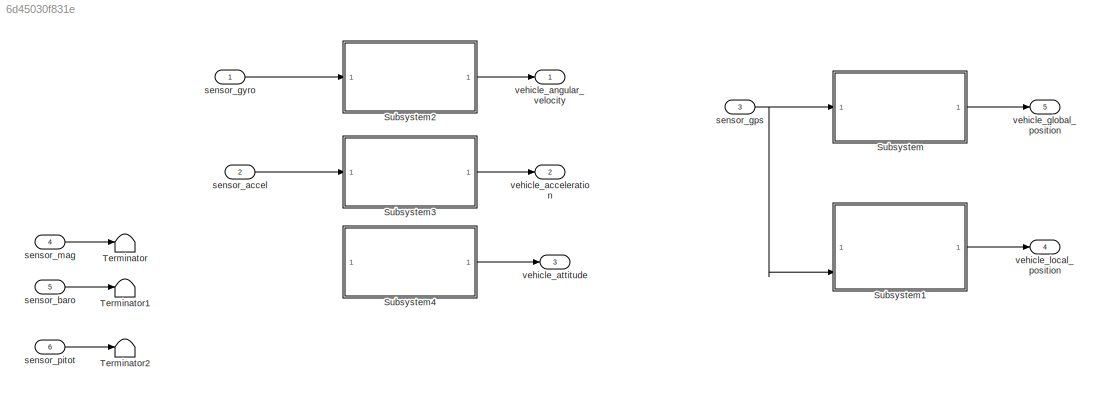
MODEL slx_6d45030f831e
KIND model
CONFIG AbsTol = auto
CONFIG EnableMultiTasking = off
CONFIG FixedStep = 0.005
CONFIG MaxStep = auto
CONFIG MinStep = auto
CONFIG RelTol = 1e-3
CONFIG SampleTimeConstraint = Unconstrained
CONFIG SolverName = FixedStepAuto
CONFIG StartTime = 0.0
CONFIG StopTime = 10.0
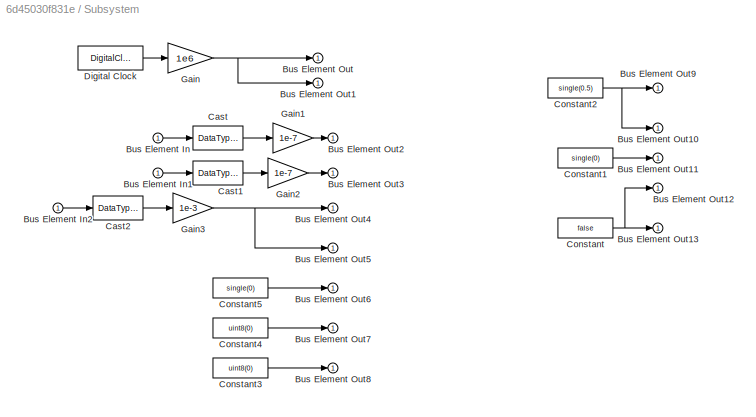
BLOCK [SubSystem] Subsystem
BLOCK [Inport] Subsystem/Bus Element In
BLOCK [Inport] Subsystem/Bus Element In1
BLOCK [Inport] Subsystem/Bus Element In2
BLOCK [Outport] Subsystem/Bus Element Out
BLOCK [Outport] Subsystem/Bus Element Out1
BLOCK [Outport] Subsystem/Bus Element Out10
BLOCK [Outport] Subsystem/Bus Element Out11
BLOCK [Outport] Subsystem/Bus Element Out12
BLOCK [Outport] Subsystem/Bus Element Out13
BLOCK [Outport] Subsystem/Bus Element Out2
BLOCK [Outport] Subsystem/Bus Element Out3
BLOCK [Outport] Subsystem/Bus Element Out4
BLOCK [Outport] Subsystem/Bus Element Out5
BLOCK [Outport] Subsystem/Bus Element Out6
BLOCK [Outport] Subsystem/Bus Element Out7
BLOCK [Outport] Subsystem/Bus Element Out8
BLOCK [Outport] Subsystem/Bus Element Out9
BLOCK [DataTypeConversion] Subsystem/Cast
  OutDataTypeStr = double
  RndMeth = Floor
  SaturateOnIntegerOverflow = off
BLOCK [DataTypeConversion] Subsystem/Cast1
  OutDataTypeStr = double
  RndMeth = Floor
  SaturateOnIntegerOverflow = off
BLOCK [DataTypeConversion] Subsystem/Cast2
  OutDataTypeStr = double
  RndMeth = Floor
  SaturateOnIntegerOverflow = off
BLOCK [Constant] Subsystem/Constant
  Value = false
BLOCK [Constant] Subsystem/Constant1
  Value = single(0)
BLOCK [Constant] Subsystem/Constant2
  Value = single(0.5)
BLOCK [Constant] Subsystem/Constant3
  Value = uint8(0)
BLOCK [Constant] Subsystem/Constant4
  Value = uint8(0)
BLOCK [Constant] Subsystem/Constant5
  Value = single(0)
BLOCK [DigitalClock] Subsystem/Digital Clock
BLOCK [Gain] Subsystem/Gain
  Gain = 1e6
  OutDataTypeStr = uint64
BLOCK [Gain] Subsystem/Gain1
  Gain = 1e-7
  OutDataTypeStr = double
BLOCK [Gain] Subsystem/Gain2
  Gain = 1e-7
  OutDataTypeStr = double
BLOCK [Gain] Subsystem/Gain3
  Gain = 1e-3
  OutDataTypeStr = single
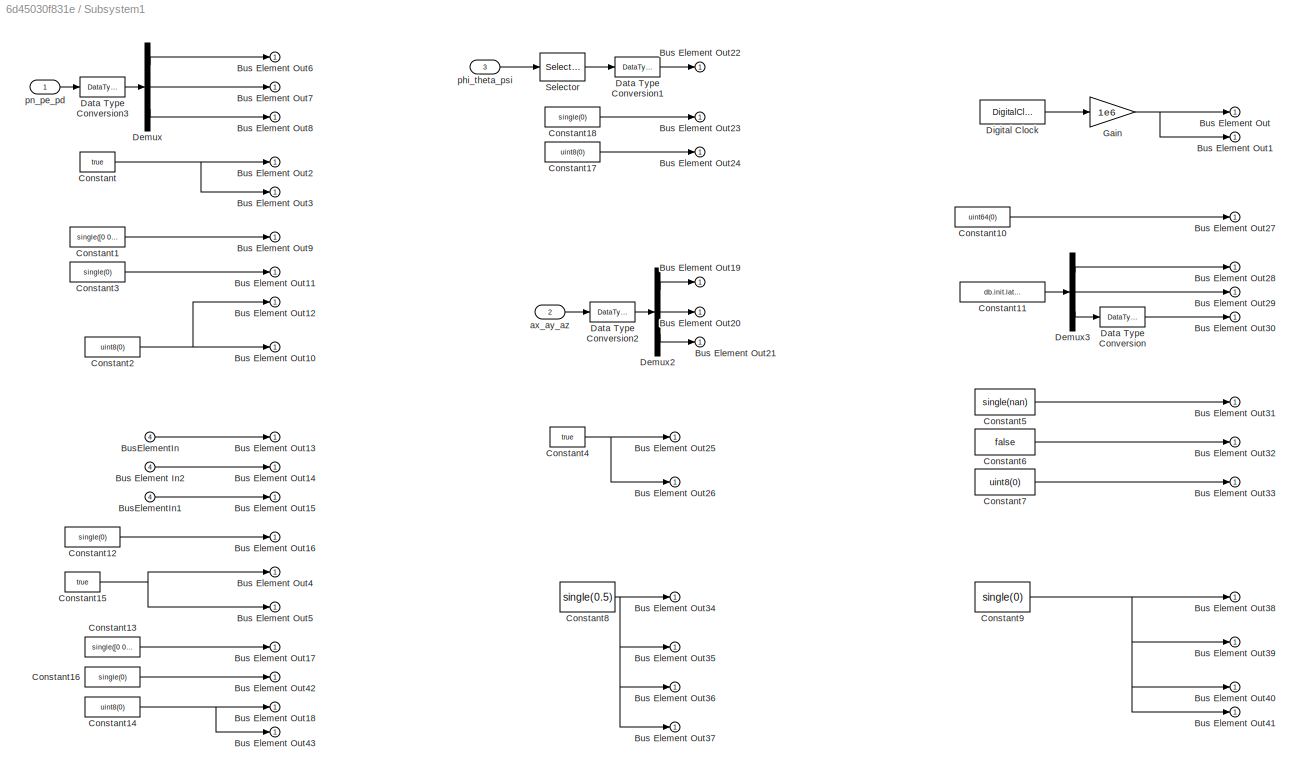
BLOCK [SubSystem] Subsystem1
  Commented = on
BLOCK [Inport] Subsystem1/Bus Element In2
  Port = 4
BLOCK [Outport] Subsystem1/Bus Element Out
BLOCK [Outport] Subsystem1/Bus Element Out1
BLOCK [Outport] Subsystem1/Bus Element Out10
BLOCK [Outport] Subsystem1/Bus Element Out11
BLOCK [Outport] Subsystem1/Bus Element Out12
BLOCK [Outport] Subsystem1/Bus Element Out13
BLOCK [Outport] Subsystem1/Bus Element Out14
BLOCK [Outport] Subsystem1/Bus Element Out15
BLOCK [Outport] Subsystem1/Bus Element Out16
BLOCK [Outport] Subsystem1/Bus Element Out17
BLOCK [Outport] Subsystem1/Bus Element Out18
BLOCK [Outport] Subsystem1/Bus Element Out19
BLOCK [Outport] Subsystem1/Bus Element Out2
BLOCK [Outport] Subsystem1/Bus Element Out20
BLOCK [Outport] Subsystem1/Bus Element Out21
BLOCK [Outport] Subsystem1/Bus Element Out22
BLOCK [Outport] Subsystem1/Bus Element Out23
BLOCK [Outport] Subsystem1/Bus Element Out24
BLOCK [Outport] Subsystem1/Bus Element Out25
BLOCK [Outport] Subsystem1/Bus Element Out26
BLOCK [Outport] Subsystem1/Bus Element Out27
BLOCK [Outport] Subsystem1/Bus Element Out28
BLOCK [Outport] Subsystem1/Bus Element Out29
BLOCK [Outport] Subsystem1/Bus Element Out3
BLOCK [Outport] Subsystem1/Bus Element Out30
BLOCK [Outport] Subsystem1/Bus Element Out31
BLOCK [Outport] Subsystem1/Bus Element Out32
BLOCK [Outport] Subsystem1/Bus Element Out33
BLOCK [Outport] Subsystem1/Bus Element Out34
BLOCK [Outport] Subsystem1/Bus Element Out35
BLOCK [Outport] Subsystem1/Bus Element Out36
BLOCK [Outport] Subsystem1/Bus Element Out37
BLOCK [Outport] Subsystem1/Bus Element Out38
BLOCK [Outport] Subsystem1/Bus Element Out39
BLOCK [Outport] Subsystem1/Bus Element Out4
BLOCK [Outport] Subsystem1/Bus Element Out40
BLOCK [Outport] Subsystem1/Bus Element Out41
BLOCK [Outport] Subsystem1/Bus Element Out42
BLOCK [Outport] Subsystem1/Bus Element Out43
BLOCK [Outport] Subsystem1/Bus Element Out5
BLOCK [Outport] Subsystem1/Bus Element Out6
BLOCK [Outport] Subsystem1/Bus Element Out7
BLOCK [Outport] Subsystem1/Bus Element Out8
BLOCK [Outport] Subsystem1/Bus Element Out9
BLOCK [Inport] Subsystem1/BusElementIn
  Port = 4
BLOCK [Inport] Subsystem1/BusElementIn1
  Port = 4
BLOCK [Constant] Subsystem1/Constant
  Value = true
BLOCK [Constant] Subsystem1/Constant1
  Value = single([0 0])
BLOCK [Constant] Subsystem1/Constant10
  Value = uint64(0)
BLOCK [Constant] Subsystem1/Constant11
  Value = db.init.lat_lon_alt
BLOCK [Constant] Subsystem1/Constant12
  Value = single(0)
BLOCK [Constant] Subsystem1/Constant13
  Value = single([0 0])
BLOCK [Constant] Subsystem1/Constant14
  Value = uint8(0)
BLOCK [Constant] Subsystem1/Constant15
  Value = true
BLOCK [Constant] Subsystem1/Constant16
  Value = single(0)
BLOCK [Constant] Subsystem1/Constant17
  Value = uint8(0)
BLOCK [Constant] Subsystem1/Constant18
  Value = single(0)
BLOCK [Constant] Subsystem1/Constant2
  Value = uint8(0)
BLOCK [Constant] Subsystem1/Constant3
  Value = single(0)
BLOCK [Constant] Subsystem1/Constant4
  Value = true
BLOCK [Constant] Subsystem1/Constant5
  Value = single(nan)
BLOCK [Constant] Subsystem1/Constant6
  Value = false
BLOCK [Constant] Subsystem1/Constant7
  Value = uint8(0)
BLOCK [Constant] Subsystem1/Constant8
  Value = single(0.5)
BLOCK [Constant] Subsystem1/Constant9
  Value = single(0)
BLOCK [DataTypeConversion] Subsystem1/Data Type Conversion
  OutDataTypeStr = single
  RndMeth = Floor
  SaturateOnIntegerOverflow = off
BLOCK [DataTypeConversion] Subsystem1/Data Type Conversion1
  OutDataTypeStr = single
  RndMeth = Floor
  SaturateOnIntegerOverflow = off
BLOCK [DataTypeConversion] Subsystem1/Data Type Conversion2
  OutDataTypeStr = single
  RndMeth = Floor
  SaturateOnIntegerOverflow = off
BLOCK [DataTypeConversion] Subsystem1/Data Type Conversion3
  OutDataTypeStr = single
  RndMeth = Floor
  SaturateOnIntegerOverflow = off
BLOCK [Demux] Subsystem1/Demux
  Outputs = 3
BLOCK [Demux] Subsystem1/Demux2
  Outputs = 3
BLOCK [Demux] Subsystem1/Demux3
  Outputs = 3
BLOCK [DigitalClock] Subsystem1/Digital Clock
BLOCK [Gain] Subsystem1/Gain
  Gain = 1e6
  OutDataTypeStr = uint64
BLOCK [Selector] Subsystem1/Selector
  IndexOptions = Index vector (dialog)
  Indices = 3
  InputPortWidth = 3
  OutputSizes = 1
BLOCK [Inport] Subsystem1/ax_ay_az
  Port = 2
BLOCK [Inport] Subsystem1/phi_theta_psi
  Port = 3
BLOCK [Inport] Subsystem1/pn_pe_pd
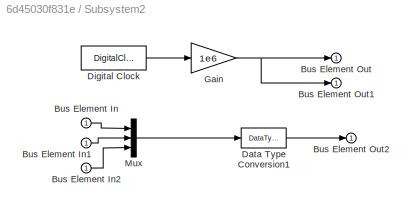
BLOCK [SubSystem] Subsystem2
BLOCK [Inport] Subsystem2/Bus Element In
BLOCK [Inport] Subsystem2/Bus Element In1
BLOCK [Inport] Subsystem2/Bus Element In2
BLOCK [Outport] Subsystem2/Bus Element Out
BLOCK [Outport] Subsystem2/Bus Element Out1
BLOCK [Outport] Subsystem2/Bus Element Out2
BLOCK [DataTypeConversion] Subsystem2/Data Type Conversion1
  OutDataTypeStr = single
  RndMeth = Floor
  SaturateOnIntegerOverflow = off
BLOCK [DigitalClock] Subsystem2/Digital Clock
BLOCK [Gain] Subsystem2/Gain
  Gain = 1e6
  OutDataTypeStr = uint64
BLOCK [Mux] Subsystem2/Mux
  DisplayOption = bar
  Inputs = 3
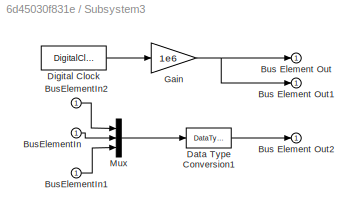
BLOCK [SubSystem] Subsystem3
BLOCK [Outport] Subsystem3/Bus Element Out
BLOCK [Outport] Subsystem3/Bus Element Out1
BLOCK [Outport] Subsystem3/Bus Element Out2
BLOCK [Inport] Subsystem3/BusElementIn
BLOCK [Inport] Subsystem3/BusElementIn1
BLOCK [Inport] Subsystem3/BusElementIn2
BLOCK [DataTypeConversion] Subsystem3/Data Type Conversion1
  OutDataTypeStr = single
  RndMeth = Floor
  SaturateOnIntegerOverflow = off
BLOCK [DigitalClock] Subsystem3/Digital Clock
BLOCK [Gain] Subsystem3/Gain
  Gain = 1e6
  OutDataTypeStr = uint64
BLOCK [Mux] Subsystem3/Mux
  DisplayOption = bar
  Inputs = 3
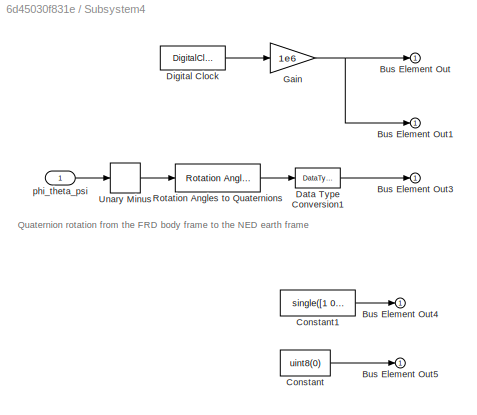
BLOCK [SubSystem] Subsystem4
  Commented = on
BLOCK [Outport] Subsystem4/Bus Element Out
BLOCK [Outport] Subsystem4/Bus Element Out1
BLOCK [Outport] Subsystem4/Bus Element Out3
BLOCK [Outport] Subsystem4/Bus Element Out4
BLOCK [Outport] Subsystem4/Bus Element Out5
BLOCK [Constant] Subsystem4/Constant
  Value = uint8(0)
BLOCK [Constant] Subsystem4/Constant1
  Value = single([1 0 0 0])
BLOCK [DataTypeConversion] Subsystem4/Data Type Conversion1
  OutDataTypeStr = single
  RndMeth = Floor
  SaturateOnIntegerOverflow = off
BLOCK [DigitalClock] Subsystem4/Digital Clock
BLOCK [Gain] Subsystem4/Gain
  Gain = 1e6
  OutDataTypeStr = uint64
BLOCK [Reference] Subsystem4/Rotation Angles to Quaternions  REF=sharedtransform/Rotation Angles to Quaternions
  AttributesFormatString = Rotation Order: %<rotationOrder>
  SourceBlock = sharedtransform/Rotation Angles to Quaternions
  SourceType = Ang2Quat
BLOCK [UnaryMinus] Subsystem4/Unary Minus
BLOCK [Inport] Subsystem4/phi_theta_psi
BLOCK [Terminator] Terminator
BLOCK [Terminator] Terminator1
BLOCK [Terminator] Terminator2
BLOCK [Inport] sensor_accel
  OutDataTypeStr = Bus: sensor_accel_s
  Port = 2
BLOCK [Inport] sensor_baro
  OutDataTypeStr = Bus: sensor_baro_s
  Port = 5
BLOCK [Inport] sensor_gps
  OutDataTypeStr = Bus: sensor_gps_s
  Port = 3
BLOCK [Inport] sensor_gyro
  OutDataTypeStr = Bus: sensor_gyro_s
BLOCK [Inport] sensor_mag
  OutDataTypeStr = Bus: sensor_mag_s
  Port = 4
BLOCK [Inport] sensor_pitot
  OutDataTypeStr = Bus: differential_pressure_s
  Port = 6
BLOCK [Outport] vehicle_acceleration
  OutDataTypeStr = Bus: vehicle_acceleration_s
  Port = 2
BLOCK [Outport] vehicle_angular_velocity
  OutDataTypeStr = Bus: vehicle_angular_velocity_s
BLOCK [Outport] vehicle_attitude
  OutDataTypeStr = Bus: vehicle_attitude_s
  Port = 3
BLOCK [Outport] vehicle_global_position
  OutDataTypeStr = Bus: vehicle_global_position_s
  Port = 5
BLOCK [Outport] vehicle_local_position
  OutDataTypeStr = Bus: vehicle_local_position_s
  Port = 4
ANNOTATION Subsystem4: Quaternion rotation from the FRD body frame to the NED earth frame
LINE Subsystem/Bus Element In1:1 -> Subsystem/Cast1:1
LINE Subsystem/Bus Element In2:1 -> Subsystem/Cast2:1
LINE Subsystem/Bus Element In:1 -> Subsystem/Cast:1
LINE Subsystem/Cast1:1 -> Subsystem/Gain2:1
LINE Subsystem/Cast2:1 -> Subsystem/Gain3:1
LINE Subsystem/Cast:1 -> Subsystem/Gain1:1
LINE Subsystem/Constant1:1 -> Subsystem/Bus Element Out11:1
NET Subsystem/Constant2:1 -> Subsystem/Bus Element Out10:1, Subsystem/Bus Element Out9:1
LINE Subsystem/Constant3:1 -> Subsystem/Bus Element Out8:1
LINE Subsystem/Constant4:1 -> Subsystem/Bus Element Out7:1
LINE Subsystem/Constant5:1 -> Subsystem/Bus Element Out6:1
NET Subsystem/Constant:1 -> Subsystem/Bus Element Out12:1, Subsystem/Bus Element Out13:1
LINE Subsystem/Digital Clock:1 -> Subsystem/Gain:1
LINE Subsystem/Gain1:1 -> Subsystem/Bus Element Out2:1
LINE Subsystem/Gain2:1 -> Subsystem/Bus Element Out3:1
NET Subsystem/Gain3:1 -> Subsystem/Bus Element Out4:1, Subsystem/Bus Element Out5:1
NET Subsystem/Gain:1 -> Subsystem/Bus Element Out1:1, Subsystem/Bus Element Out:1
LINE Subsystem1/Bus Element In2:1 -> Subsystem1/Bus Element Out14:1
LINE Subsystem1/BusElementIn1:1 -> Subsystem1/Bus Element Out15:1
LINE Subsystem1/BusElementIn:1 -> Subsystem1/Bus Element Out13:1
LINE Subsystem1/Constant10:1 -> Subsystem1/Bus Element Out27:1
LINE Subsystem1/Constant11:1 -> Subsystem1/Demux3:1
LINE Subsystem1/Constant12:1 -> Subsystem1/Bus Element Out16:1
LINE Subsystem1/Constant13:1 -> Subsystem1/Bus Element Out17:1
NET Subsystem1/Constant14:1 -> Subsystem1/Bus Element Out18:1, Subsystem1/Bus Element Out43:1
NET Subsystem1/Constant15:1 -> Subsystem1/Bus Element Out4:1, Subsystem1/Bus Element Out5:1
LINE Subsystem1/Constant16:1 -> Subsystem1/Bus Element Out42:1
LINE Subsystem1/Constant17:1 -> Subsystem1/Bus Element Out24:1
LINE Subsystem1/Constant18:1 -> Subsystem1/Bus Element Out23:1
LINE Subsystem1/Constant1:1 -> Subsystem1/Bus Element Out9:1
NET Subsystem1/Constant2:1 -> Subsystem1/Bus Element Out10:1, Subsystem1/Bus Element Out12:1
LINE Subsystem1/Constant3:1 -> Subsystem1/Bus Element Out11:1
NET Subsystem1/Constant4:1 -> Subsystem1/Bus Element Out25:1, Subsystem1/Bus Element Out26:1
LINE Subsystem1/Constant5:1 -> Subsystem1/Bus Element Out31:1
LINE Subsystem1/Constant6:1 -> Subsystem1/Bus Element Out32:1
LINE Subsystem1/Constant7:1 -> Subsystem1/Bus Element Out33:1
NET Subsystem1/Constant8:1 -> Subsystem1/Bus Element Out34:1, Subsystem1/Bus Element Out35:1, Subsystem1/Bus Element Out36:1, Subsystem1/Bus Element Out37:1
NET Subsystem1/Constant9:1 -> Subsystem1/Bus Element Out38:1, Subsystem1/Bus Element Out39:1, Subsystem1/Bus Element Out40:1, Subsystem1/Bus Element Out41:1
NET Subsystem1/Constant:1 -> Subsystem1/Bus Element Out2:1, Subsystem1/Bus Element Out3:1
LINE Subsystem1/Data Type Conversion1:1 -> Subsystem1/Bus Element Out22:1
LINE Subsystem1/Data Type Conversion2:1 -> Subsystem1/Demux2:1
LINE Subsystem1/Data Type Conversion3:1 -> Subsystem1/Demux:1
LINE Subsystem1/Data Type Conversion:1 -> Subsystem1/Bus Element Out30:1
LINE Subsystem1/Demux2:1 -> Subsystem1/Bus Element Out19:1
LINE Subsystem1/Demux2:2 -> Subsystem1/Bus Element Out20:1
LINE Subsystem1/Demux2:3 -> Subsystem1/Bus Element Out21:1
LINE Subsystem1/Demux3:1 -> Subsystem1/Bus Element Out28:1
LINE Subsystem1/Demux3:2 -> Subsystem1/Bus Element Out29:1
LINE Subsystem1/Demux3:3 -> Subsystem1/Data Type Conversion:1
LINE Subsystem1/Demux:1 -> Subsystem1/Bus Element Out6:1
LINE Subsystem1/Demux:2 -> Subsystem1/Bus Element Out7:1
LINE Subsystem1/Demux:3 -> Subsystem1/Bus Element Out8:1
LINE Subsystem1/Digital Clock:1 -> Subsystem1/Gain:1
NET Subsystem1/Gain:1 -> Subsystem1/Bus Element Out1:1, Subsystem1/Bus Element Out:1
LINE Subsystem1/Selector:1 -> Subsystem1/Data Type Conversion1:1
LINE Subsystem1/ax_ay_az:1 -> Subsystem1/Data Type Conversion2:1
LINE Subsystem1/phi_theta_psi:1 -> Subsystem1/Selector:1
LINE Subsystem1/pn_pe_pd:1 -> Subsystem1/Data Type Conversion3:1
LINE Subsystem1:1 -> vehicle_local_position:1
LINE Subsystem2/Bus Element In1:1 -> Subsystem2/Mux:2
LINE Subsystem2/Bus Element In2:1 -> Subsystem2/Mux:3
LINE Subsystem2/Bus Element In:1 -> Subsystem2/Mux:1
LINE Subsystem2/Data Type Conversion1:1 -> Subsystem2/Bus Element Out2:1
LINE Subsystem2/Digital Clock:1 -> Subsystem2/Gain:1
NET Subsystem2/Gain:1 -> Subsystem2/Bus Element Out1:1, Subsystem2/Bus Element Out:1
LINE Subsystem2/Mux:1 -> Subsystem2/Data Type Conversion1:1
LINE Subsystem2:1 -> vehicle_angular_velocity:1
LINE Subsystem3/BusElementIn1:1 -> Subsystem3/Mux:3
LINE Subsystem3/BusElementIn2:1 -> Subsystem3/Mux:1
LINE Subsystem3/BusElementIn:1 -> Subsystem3/Mux:2
LINE Subsystem3/Data Type Conversion1:1 -> Subsystem3/Bus Element Out2:1
LINE Subsystem3/Digital Clock:1 -> Subsystem3/Gain:1
NET Subsystem3/Gain:1 -> Subsystem3/Bus Element Out1:1, Subsystem3/Bus Element Out:1
LINE Subsystem3/Mux:1 -> Subsystem3/Data Type Conversion1:1
LINE Subsystem3:1 -> vehicle_acceleration:1
LINE Subsystem4/Constant1:1 -> Subsystem4/Bus Element Out4:1
LINE Subsystem4/Constant:1 -> Subsystem4/Bus Element Out5:1
LINE Subsystem4/Data Type Conversion1:1 -> Subsystem4/Bus Element Out3:1
LINE Subsystem4/Digital Clock:1 -> Subsystem4/Gain:1
NET Subsystem4/Gain:1 -> Subsystem4/Bus Element Out1:1, Subsystem4/Bus Element Out:1
LINE Subsystem4/Rotation Angles to Quaternions:1 -> Subsystem4/Data Type Conversion1:1
LINE Subsystem4/Unary Minus:1 -> Subsystem4/Rotation Angles to Quaternions:1
LINE Subsystem4/phi_theta_psi:1 -> Subsystem4/Unary Minus:1
LINE Subsystem4:1 -> vehicle_attitude:1
LINE Subsystem:1 -> vehicle_global_position:1
LINE sensor_accel:1 -> Subsystem3:1
LINE sensor_baro:1 -> Terminator1:1
NET sensor_gps:1 -> Subsystem1:4, Subsystem:1
LINE sensor_gyro:1 -> Subsystem2:1
LINE sensor_mag:1 -> Terminator:1
LINE sensor_pitot:1 -> Terminator2:1
note: NET lines group one-source signal fan-out (src -> all destinations, sorted); 1:1 wires keep LINE
